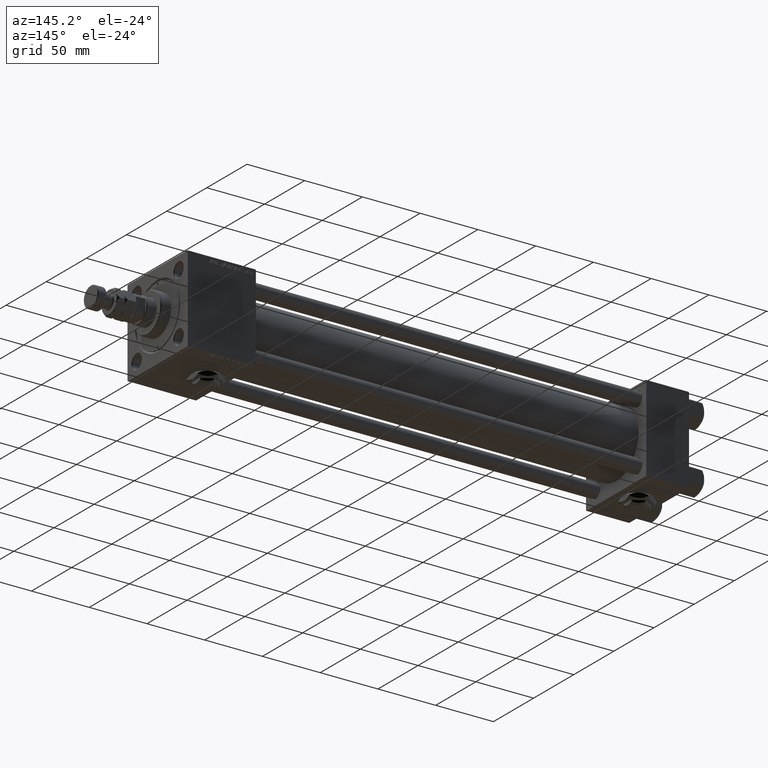
[diagram: clean part render]
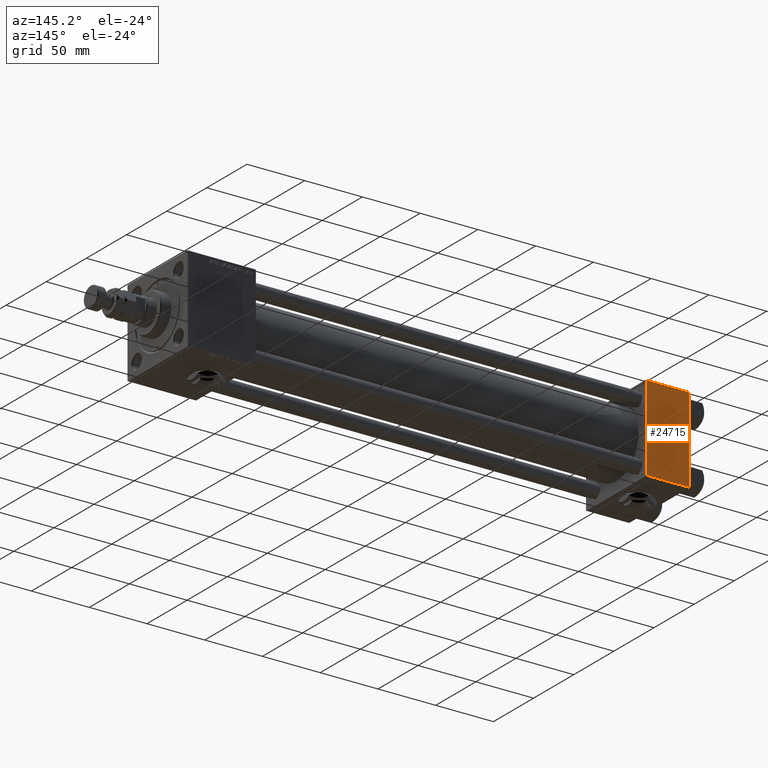
[diagram: same view with one face highlighted and labeled with its STEP entity id]
A machine part, auxiliary view. The second image highlights one B-rep face of the part: STEP entity #24715.
In plain terms, the highlighted planar face has unit normal (0, 1, 0).
Its self-contained STEP definition (entity closure, byte-faithful):
#483 = CARTESIAN_POINT ( 'NONE',  ( 37.00000000000000000, 37.49999999999999289, 37.50000000000000000 ) ) ;
#1571 = VECTOR ( 'NONE', #12770, 1000.000000000000000 ) ;
#2534 = VECTOR ( 'NONE', #50427, 1000.000000000000000 ) ;
#2893 = CARTESIAN_POINT ( 'NONE',  ( 37.00000000000000000, 37.49999999999999289, -36.99999999999998579 ) ) ;
#4663 = CARTESIAN_POINT ( 'NONE',  ( 37.00000000000000000, 37.49999999999999289, 37.00000000000000000 ) ) ;
#4676 = VERTEX_POINT ( 'NONE', #46833 ) ;
#5047 = CARTESIAN_POINT ( 'NONE',  ( 0.000000000000000000, 37.49999999999999289, 37.50000000000000000 ) ) ;
#6763 = EDGE_LOOP ( 'NONE', ( #18304, #53864, #26054, #49037 ) ) ;
#7321 = PLANE ( 'NONE',  #27741 ) ;
#9286 = LINE ( 'NONE', #4663, #52966 ) ;
#12455 = VERTEX_POINT ( 'NONE', #12950 ) ;
#12496 = LINE ( 'NONE', #483, #1571 ) ;
#12770 = DIRECTION ( 'NONE',  ( 0.000000000000000000, 0.000000000000000000, -1.000000000000000000 ) ) ;
#12950 = CARTESIAN_POINT ( 'NONE',  ( 0.000000000000000000, 37.49999999999999289, 37.00000000000000000 ) ) ;
#13755 = VERTEX_POINT ( 'NONE', #36357 ) ;
#18304 = ORIENTED_EDGE ( 'NONE', *, *, #50028, .T. ) ;
#21412 = VERTEX_POINT ( 'NONE', #48581 ) ;
#24715 = ADVANCED_FACE ( 'NONE', ( #33265 ), #7321, .T. ) ;
#26009 = EDGE_CURVE ( 'NONE', #12455, #21412, #34552, .T. ) ;
#26054 = ORIENTED_EDGE ( 'NONE', *, *, #26009, .F. ) ;
#27474 = EDGE_CURVE ( 'NONE', #4676, #21412, #28016, .T. ) ;
#27741 = AXIS2_PLACEMENT_3D ( 'NONE', #49126, #28340, #37365 ) ;
#28016 = LINE ( 'NONE', #2893, #47972 ) ;
#28340 = DIRECTION ( 'NONE',  ( -0.000000000000000000, 1.000000000000000000, 0.000000000000000000 ) ) ;
#33265 = FACE_OUTER_BOUND ( 'NONE', #6763, .T. ) ;
#34552 = LINE ( 'NONE', #5047, #2534 ) ;
#34966 = DIRECTION ( 'NONE',  ( 1.000000000000000000, 0.000000000000000000, 0.000000000000000000 ) ) ;
#36357 = CARTESIAN_POINT ( 'NONE',  ( 37.00000000000000000, 37.49999999999999289, 37.00000000000000000 ) ) ;
#36774 = DIRECTION ( 'NONE',  ( -1.000000000000000000, 0.000000000000000000, 0.000000000000000000 ) ) ;
#37365 = DIRECTION ( 'NONE',  ( 0.000000000000000000, -0.000000000000000000, 1.000000000000000000 ) ) ;
#46833 = CARTESIAN_POINT ( 'NONE',  ( 37.00000000000000000, 37.49999999999999289, -36.99999999999998579 ) ) ;
#47117 = EDGE_CURVE ( 'NONE', #12455, #13755, #9286, .T. ) ;
#47972 = VECTOR ( 'NONE', #36774, 1000.000000000000000 ) ;
#48581 = CARTESIAN_POINT ( 'NONE',  ( 0.000000000000000000, 37.49999999999999289, -36.99999999999998579 ) ) ;
#49037 = ORIENTED_EDGE ( 'NONE', *, *, #47117, .T. ) ;
#49126 = CARTESIAN_POINT ( 'NONE',  ( 37.00000000000000000, 37.49999999999999289, 37.50000000000000000 ) ) ;
#50028 = EDGE_CURVE ( 'NONE', #13755, #4676, #12496, .T. ) ;
#50427 = DIRECTION ( 'NONE',  ( 0.000000000000000000, 0.000000000000000000, -1.000000000000000000 ) ) ;
#52966 = VECTOR ( 'NONE', #34966, 1000.000000000000000 ) ;
#53864 = ORIENTED_EDGE ( 'NONE', *, *, #27474, .T. ) ;